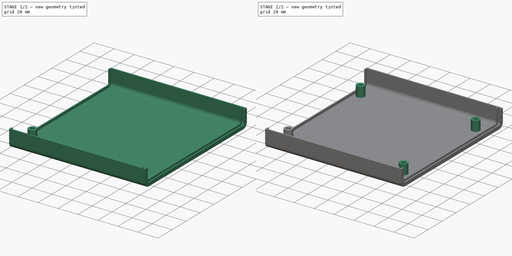
[diagram: build sequence overview — one tinted view per stage of 2, left to right]
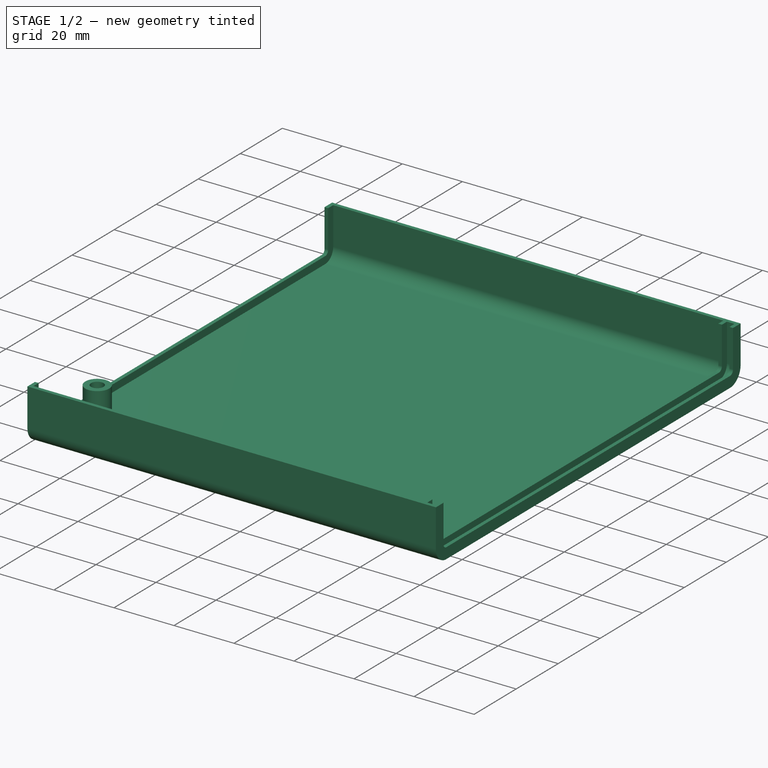
[diagram: stage 1 of 2 — iso view after this stage's code; geometry added in this stage tinted green]
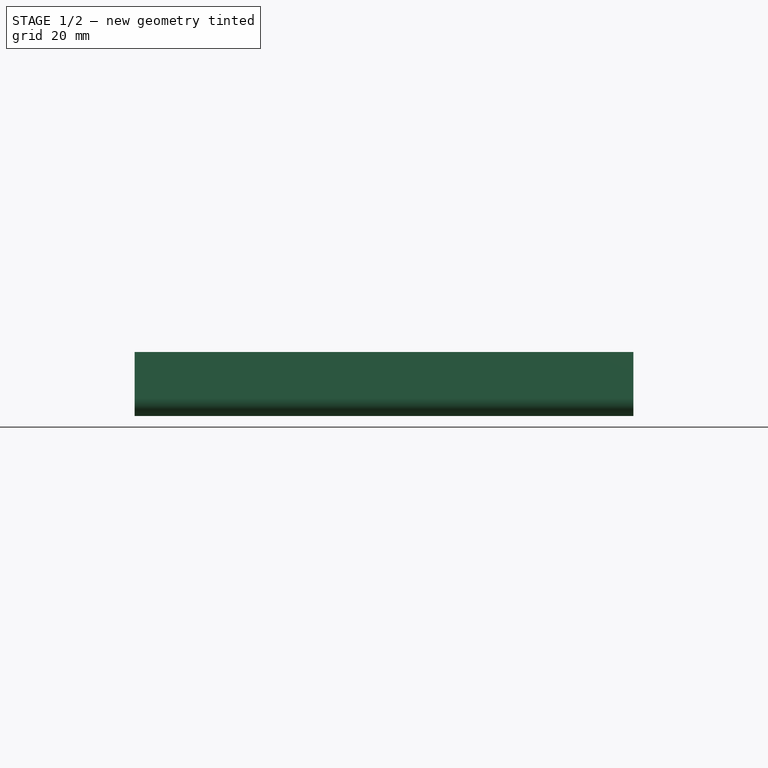
[diagram: stage 1 of 2 — front view after this stage's code; geometry added in this stage tinted green]
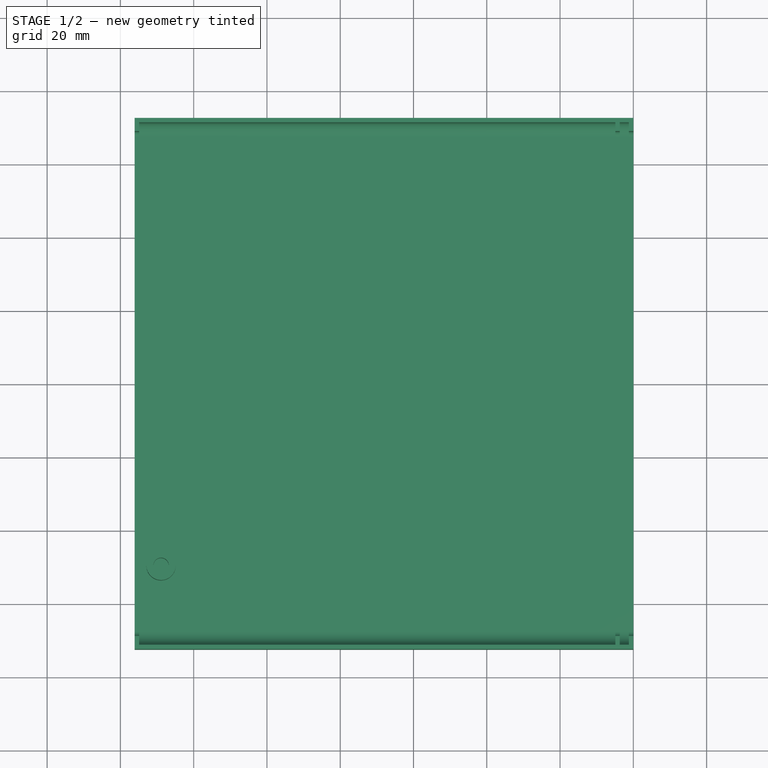
[diagram: stage 1 of 2 — top view after this stage's code; geometry added in this stage tinted green]
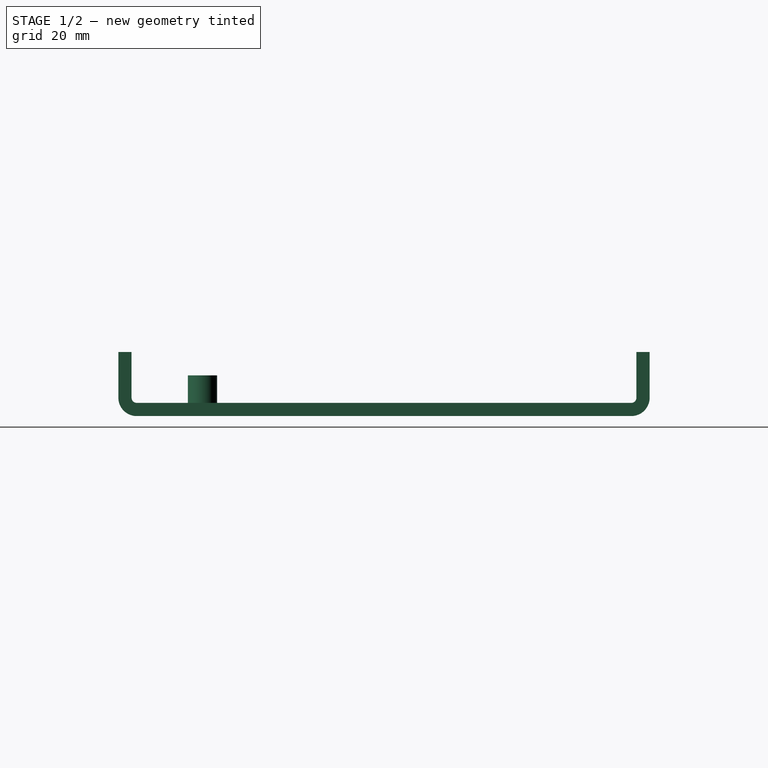
[diagram: stage 1 of 2 — right view after this stage's code; geometry added in this stage tinted green]
FCSTD DOCUMENT  (FreeCAD 0.21R33771 (Git))
Label: clam shell
License: All rights reserved
LicenseURL: http://en.wikipedia.org/wiki/All_rights_reserved
objects: Sketcher::SketchObject×3, PartDesign::LinearPattern×2, PartDesign::AdditivePipe×1, PartDesign::Pad×1, PartDesign::MultiTransform×1, PartDesign::Body×1
note: 11 computed .brp shape members not serialized (recipe doc carries the construction recipe); baked Part::Feature solids carry a one-line shape summary decoded from their .brp

FEATURE [Sketcher::SketchObject] Sketch
  FullyConstrained = true
  MapMode = 5
  Placement = pos=(0,0,0) rot=(0.57735,0.57735,0.57735;2.0944rad)
  Support = -> [YZ_Plane]
  sketch-geometry (5):
    g0: LineSegment StartX=-72.5 StartY=17.5 StartZ=0 EndX=-72.5 EndY=5 EndZ=0
    g1: LineSegment StartX=-67.5 StartY=0 StartZ=0 EndX=67.5 EndY=0 EndZ=0
    g2: LineSegment StartX=72.5 StartY=5 StartZ=0 EndX=72.5 EndY=17.5 EndZ=0
    g3: ArcOfCircle CenterX=-67.5 CenterY=5 CenterZ=0 NormalX=0 NormalY=0 NormalZ=1 AngleXU=0 Radius=5 StartAngle=3.14159 EndAngle=4.71239
    g4: ArcOfCircle CenterX=67.5 CenterY=5 CenterZ=0 NormalX=0 NormalY=0 NormalZ=1 AngleXU=0 Radius=5 StartAngle=4.71239 EndAngle=6.28319
  constraints (13):
    c: Vertical(g0)
    c: Vertical(g2)
    c: Tangent(g0,g3) = -1.5708
    c: Tangent(g1,g3) = -1.5708
    c: Tangent(g1,g4) = -1.5708
    c: Tangent(g2,g4) = -1.5708
    c: Equal(g3,g4)
    c: Equal(g0,g2)
    c: PointOnObject(g1,g-1)
    c: DistanceY(g-1,g0) = 17.5
    c: DistanceX(g1,g1) = 135
    c: Diameter(g3) = 10
    c: Symmetric(g1,g1,g-1)
FEATURE [Sketcher::SketchObject] Sketch001
  AttachmentOffset = pos=(0,0,17.5) rot=(0,0,1;0rad)
  FullyConstrained = true
  MapMode = 5
  Placement = pos=(0,0,17.5) rot=(0,0,1;0rad)
  Support = -> [XY_Plane]
  sketch-geometry (12):
    g0: LineSegment StartX=0 StartY=-72.5 StartZ=0 EndX=-136.1 EndY=-72.5 EndZ=0
    g1: LineSegment StartX=-136.1 StartY=-72.5 StartZ=0 EndX=-136.1 EndY=-68.9 EndZ=0
    g2: LineSegment StartX=-136.1 StartY=-68.9 StartZ=0 EndX=-134.9 EndY=-68.9 EndZ=0
    g3: LineSegment StartX=-134.9 StartY=-68.9 StartZ=0 EndX=-134.9 EndY=-71.3 EndZ=0
    g4: LineSegment StartX=-134.9 StartY=-71.3 StartZ=0 EndX=-4.9 EndY=-71.3 EndZ=0
    g5: LineSegment StartX=-4.9 StartY=-71.3 StartZ=0 EndX=-4.9 EndY=-68.9 EndZ=0
    g6: LineSegment StartX=-4.9 StartY=-68.9 StartZ=0 EndX=-3.7 EndY=-68.9 EndZ=0
    g7: LineSegment StartX=-3.7 StartY=-68.9 StartZ=0 EndX=-3.7 EndY=-71.3 EndZ=0
    g8: LineSegment StartX=-3.7 StartY=-71.3 StartZ=0 EndX=-1.2 EndY=-71.3 EndZ=0
    g9: LineSegment StartX=-1.2 StartY=-71.3 StartZ=0 EndX=-1.2 EndY=-68.9 EndZ=0
    g10: LineSegment StartX=0 StartY=-68.9 StartZ=0 EndX=0 EndY=-72.5 EndZ=0
    g11: LineSegment StartX=-1.2 StartY=-68.9 StartZ=0 EndX=0 EndY=-68.9 EndZ=0
  constraints (36):
    c: PointOnObject(g0,g-2)
    c: Horizontal(g0)
    c: Coincident(g0,g1)
    c: Coincident(g1,g2)
    c: Coincident(g2,g3)
    c: Vertical(g3)
    c: Coincident(g3,g4)
    c: Horizontal(g4)
    c: Coincident(g4,g5)
    c: Vertical(g5)
    c: Coincident(g5,g6)
    c: Coincident(g6,g7)
    c: Coincident(g7,g8)
    c: Coincident(g8,g9)
    c: Vertical(g7)
    c: Horizontal(g6)
    c: Horizontal(g8)
    c: Vertical(g10)
    c: Vertical(g9)
    c: Horizontal(g7,g4)
    c: Coincident(g10,g0)
    c: DistanceX(g8,g8) = 2.5
    c: DistanceX(g6,g6) = 1.2
    c: Horizontal(g5,g2)
    c: Horizontal(g2)
    c: Vertical(g1)
    c: DistanceX(g4,g4) = 130
    c: DistanceX(g2,g2) = 1.2
    c: DistanceY(g0,g3) = 1.2
    c: Horizontal(g6,g10)
    c: DistanceY(g9,g9) = 2.4
    c: Horizontal(g10,g9)
    c: Coincident(g11,g9)
    c: Coincident(g11,g10)
    c: Equal(g11,g6)
    c: DistanceY(g0,g-1) = 72.5
FEATURE [PartDesign::AdditivePipe] AdditivePipe
  AuxilleryCurvelinear = true
  AuxillerySpineTangent = false
  Binormal = (0,0,0)
  Mode = 0
  Profile = -> Sketch001
  Spine = -> Sketch [Edge1,Edge2,Edge3,Edge4,Edge5]
  SpineTangent = false
  Transformation = 0
  Transition = 0
FEATURE [Sketcher::SketchObject] Sketch002
  ExternalGeometry = -> [AdditivePipe]
  FullyConstrained = true
  MapMode = 5
  Placement = pos=(-5e-16,3e-16,1.2) rot=(0,0,1;0rad)
  sketch-geometry (2):
    g0: Circle CenterX=-128.9 CenterY=-49.535 CenterZ=0 NormalX=0 NormalY=0 NormalZ=1 AngleXU=0 Radius=4
    g1: Circle CenterX=-128.9 CenterY=-49.535 CenterZ=0 NormalX=0 NormalY=0 NormalZ=1 AngleXU=0 Radius=2.1
  constraints (5):
    c: Coincident(g1,g0)
    c: DistanceY(g0,g-1) = 49.535
    c: Diameter(g1) = 4.2
    c: Diameter(g0) = 8
    c: Distance(g0,g-3) = 6
FEATURE [PartDesign::Pad] Pad
  BaseFeature = -> AdditivePipe
  Direction = (-4e-16,2e-16,1)
  Length = 9.9
  Length2 = 10
  Profile = -> Sketch002
  ReferenceAxis = -> Sketch002 [N_Axis]
  Type = 0
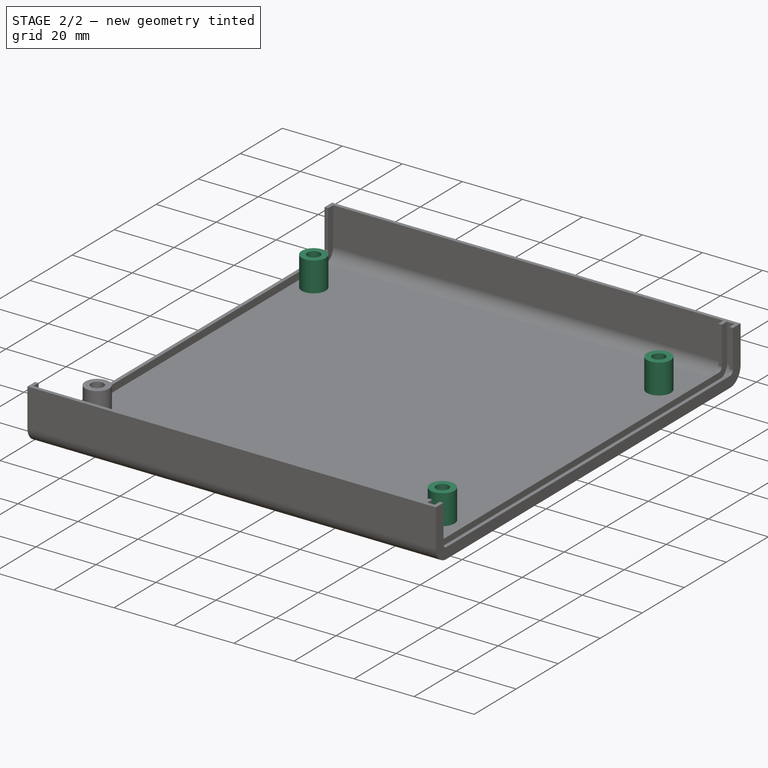
[diagram: stage 2 of 2 — iso view after this stage's code; geometry added in this stage tinted green]
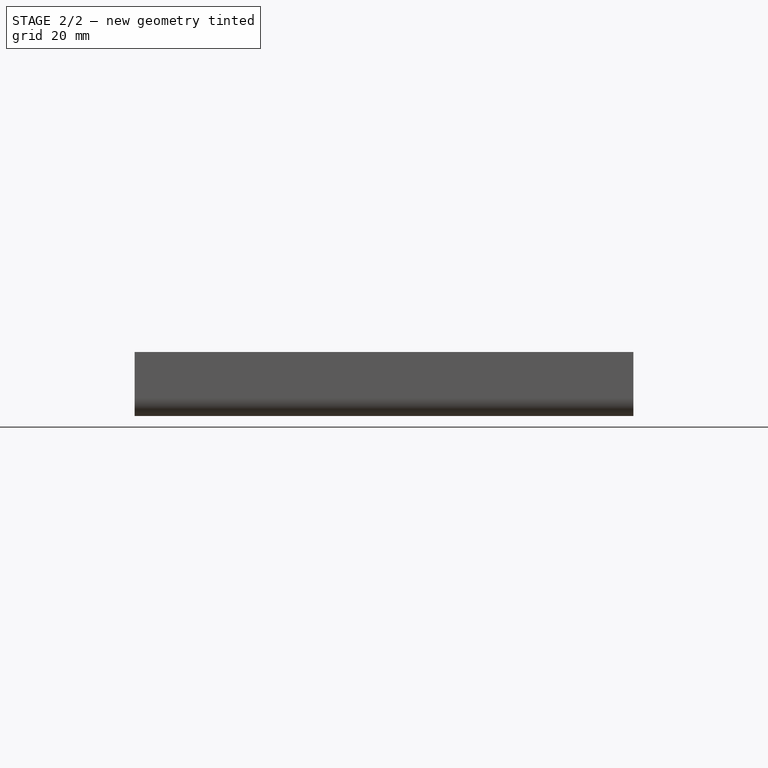
[diagram: stage 2 of 2 — front view after this stage's code; geometry added in this stage tinted green]
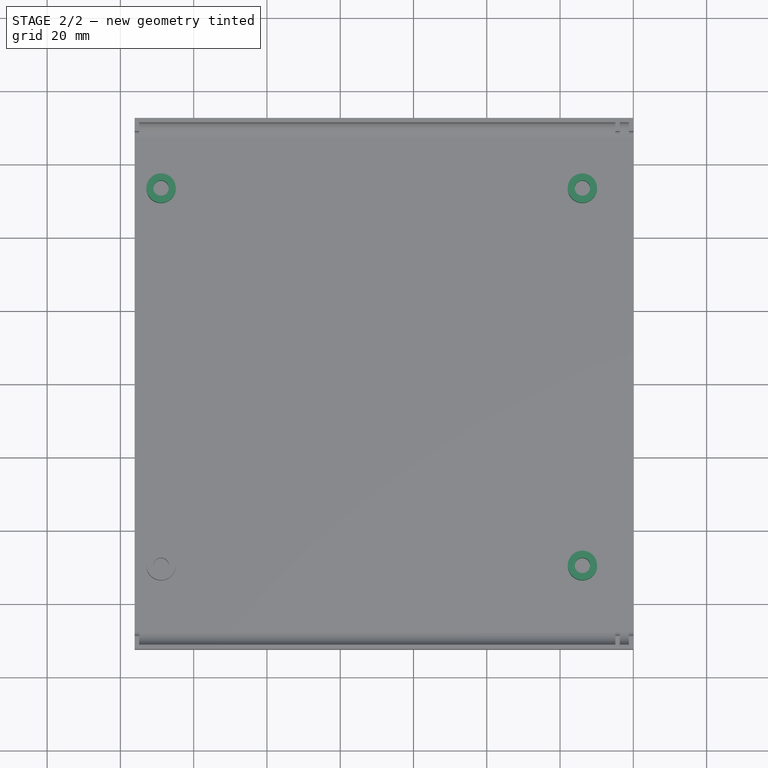
[diagram: stage 2 of 2 — top view after this stage's code; geometry added in this stage tinted green]
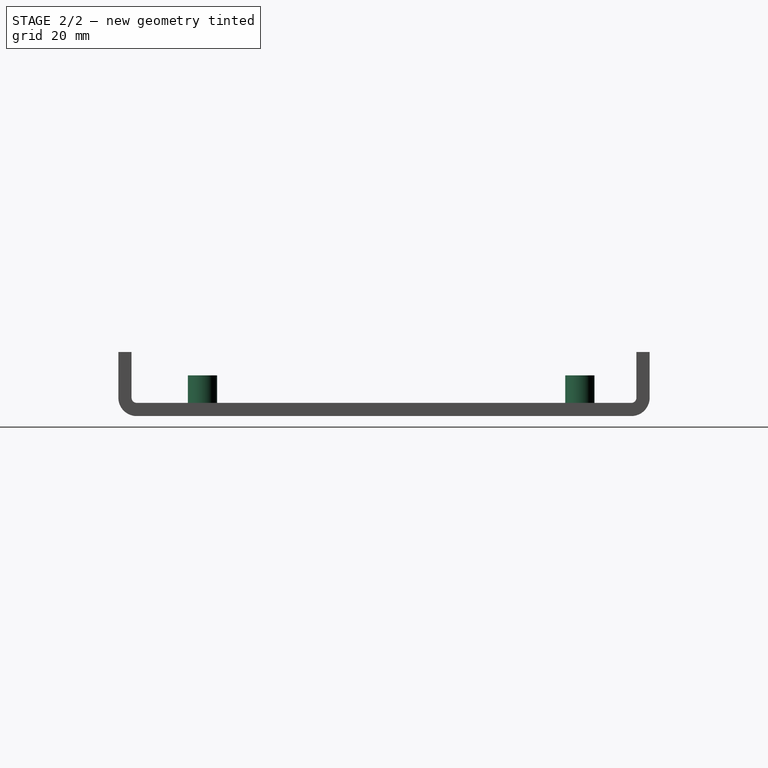
[diagram: stage 2 of 2 — right view after this stage's code; geometry added in this stage tinted green]
FEATURE [PartDesign::LinearPattern] LinearPattern
  Direction = -> Sketch002 [H_Axis]
  Length = 115
  Occurrences = 2
FEATURE [PartDesign::LinearPattern] LinearPattern001
  Direction = -> Sketch002 [V_Axis]
  Length = 103
  Occurrences = 2
FEATURE [PartDesign::MultiTransform] MultiTransform
  BaseFeature = -> Pad
  Originals = -> [Pad]
  Transformations = -> [LinearPattern,LinearPattern001]
FEATURE [PartDesign::Body] Body
  Group = -> [Sketch,Sketch001,AdditivePipe,Sketch002,Pad,MultiTransform,LinearPattern,LinearPattern001]
  Origin = -> Origin
  Tip = -> MultiTransform
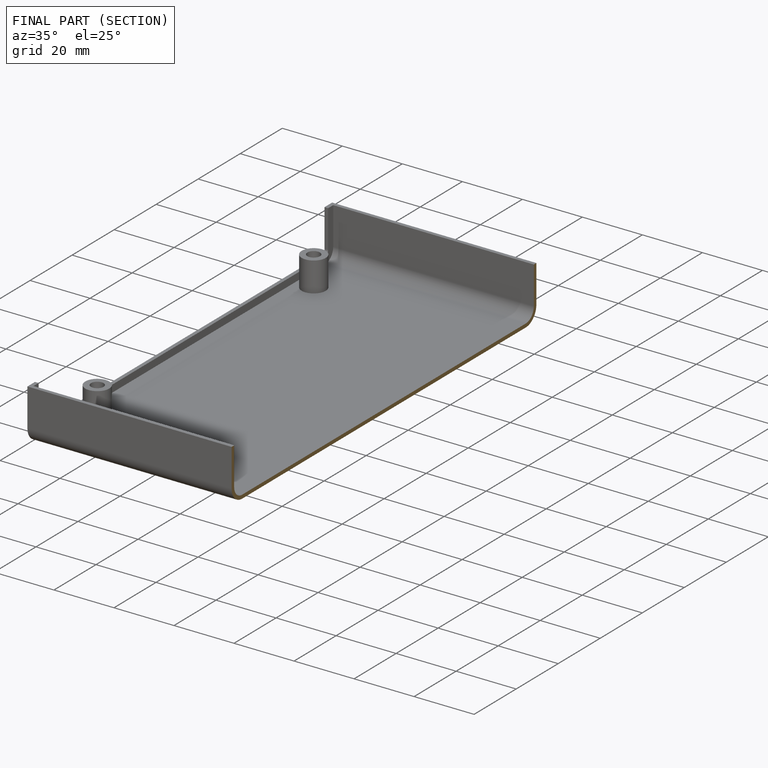
[diagram: finished part — half-section view (interior)]
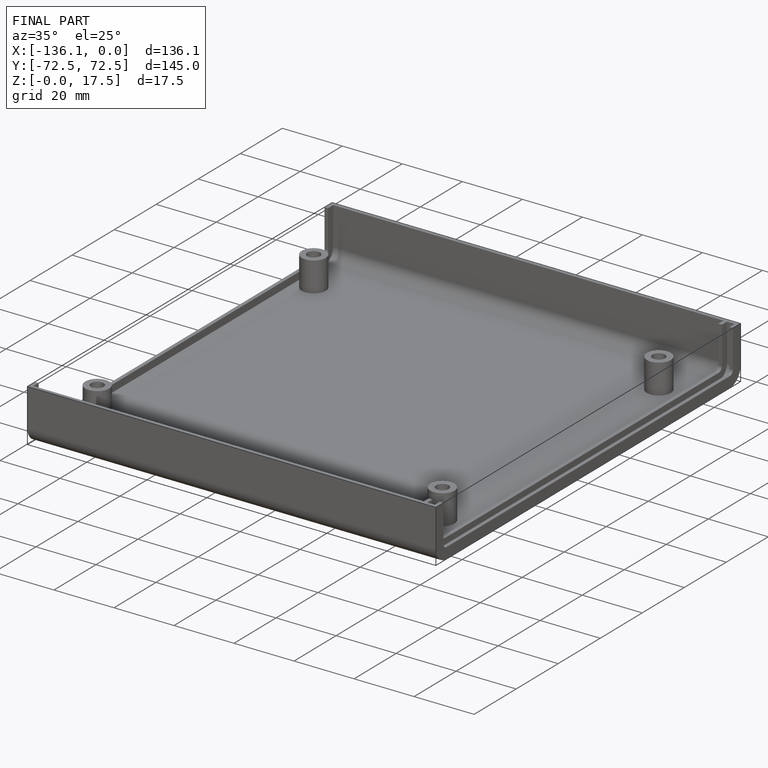
[diagram: finished part — iso view with bounding-box wireframe]
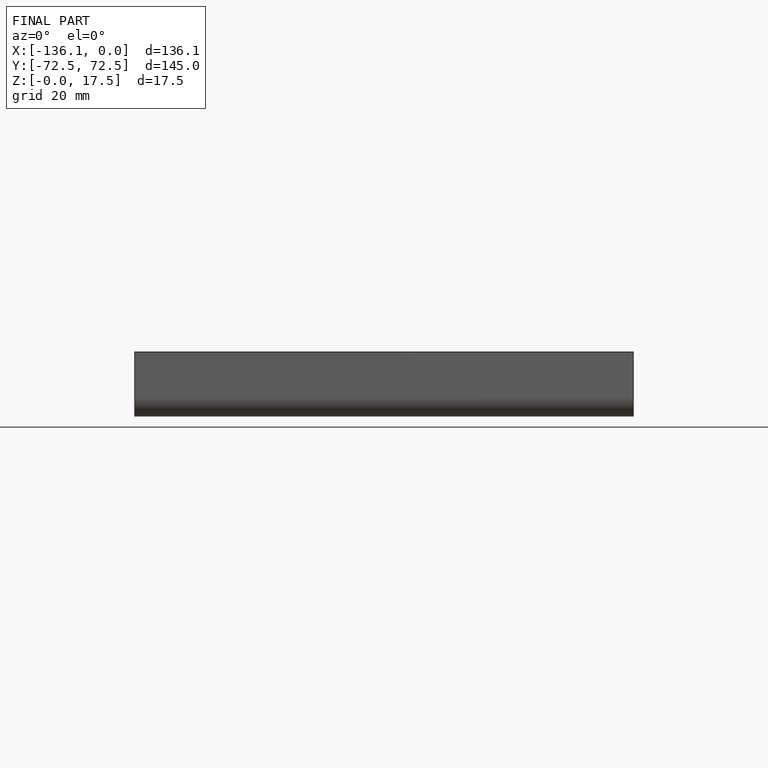
[diagram: finished part — front view with bounding-box wireframe]
